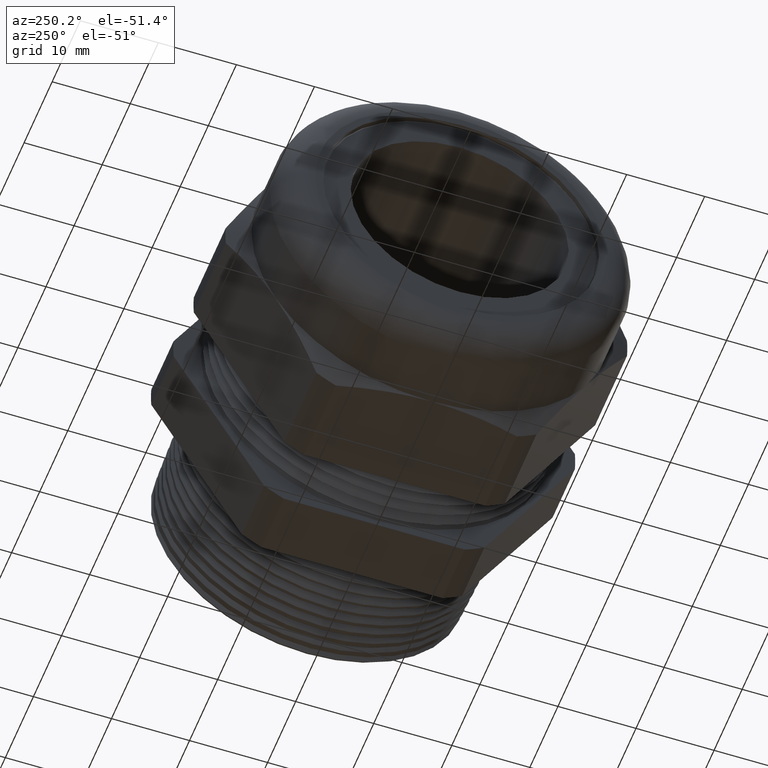
[diagram: clean part render]
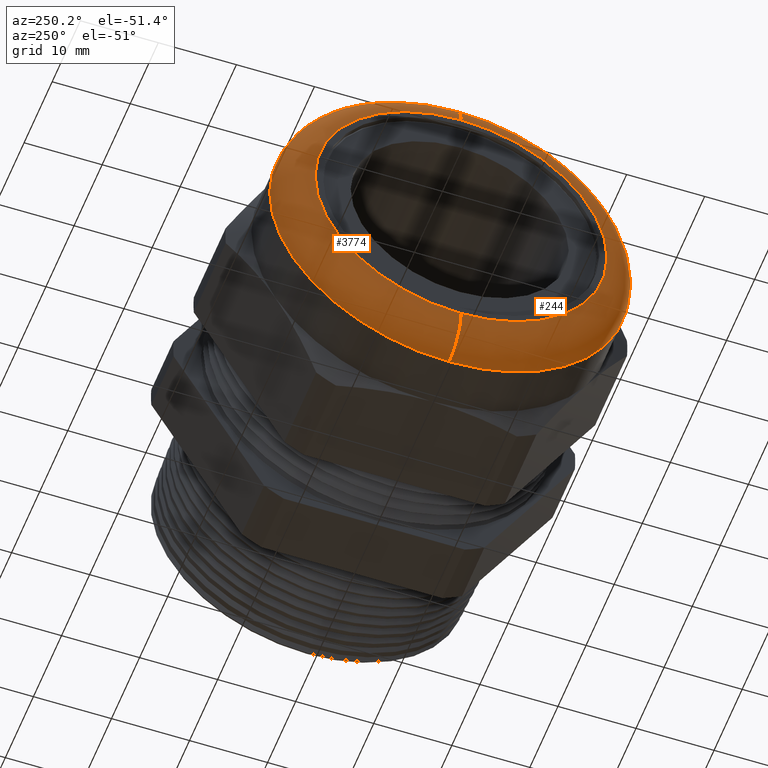
[diagram: same view with one multi-face feature highlighted, each face labeled with its STEP entity id]
A machine part, auxiliary view. The highlighted faces form ONE feature: a constant-radius fillet chain: 2 tangent blend faces with common blend radius 4.2824 mm. The faces share edges in the B-rep.
Their STEP definitions:
[1] entity #244 (Torus):
#190 = EDGE_CURVE ( 'NONE', #3820, #3768, #1124, .T. ) ;
#222 = EDGE_CURVE ( 'NONE', #557, #555, #1153, .T. ) ;
#244 = ADVANCED_FACE ( 'NONE', ( #1197 ), #1192, .T. ) ;
#245 = EDGE_LOOP ( 'NONE', ( #246, #247, #248, #249 ) ) ;
#246 = ORIENTED_EDGE ( 'NONE', *, *, #3823, .F. ) ;
#247 = ORIENTED_EDGE ( 'NONE', *, *, #190, .F. ) ;
#248 = ORIENTED_EDGE ( 'NONE', *, *, #549, .T. ) ;
#249 = ORIENTED_EDGE ( 'NONE', *, *, #222, .F. ) ;
#549 = EDGE_CURVE ( 'NONE', #3820, #555, #1736, .T. ) ;
#555 = VERTEX_POINT ( 'NONE', #1782 ) ;
#557 = VERTEX_POINT ( 'NONE', #1776 ) ;
#1120 = DIRECTION ( 'NONE',  ( 0.0000000000000000000, 0.0000000000000000000, -1.000000000000000000 ) ) ;
#1121 = DIRECTION ( 'NONE',  ( -1.000000000000000000, 0.0000000000000000000, 0.0000000000000000000 ) ) ;
#1122 = CARTESIAN_POINT ( 'NONE',  ( -1.530000000000000000, 0.0000000000000000000, 0.0000000000000000000 ) ) ;
#1123 = AXIS2_PLACEMENT_3D ( 'NONE', #1122, #1121, #1120 ) ;
#1124 = CIRCLE ( 'NONE', #1123, 0.7363999999999998300 ) ;
#1149 = DIRECTION ( 'NONE',  ( 0.0000000000000000000, 0.0000000000000000000, -1.000000000000000000 ) ) ;
#1150 = DIRECTION ( 'NONE',  ( 1.000000000000000000, 0.0000000000000000000, 0.0000000000000000000 ) ) ;
#1151 = CARTESIAN_POINT ( 'NONE',  ( -1.361399999999999900, 0.0000000000000000000, 0.0000000000000000000 ) ) ;
#1152 = AXIS2_PLACEMENT_3D ( 'NONE', #1151, #1150, #1149 ) ;
#1153 = CIRCLE ( 'NONE', #1152, 0.9049999999999999200 ) ;
#1188 = DIRECTION ( 'NONE',  ( 0.0000000000000000000, 0.0000000000000000000, -1.000000000000000000 ) ) ;
#1189 = DIRECTION ( 'NONE',  ( 1.000000000000000000, 0.0000000000000000000, 0.0000000000000000000 ) ) ;
#1190 = CARTESIAN_POINT ( 'NONE',  ( -1.361399999999999900, 0.0000000000000000000, 0.0000000000000000000 ) ) ;
#1191 = AXIS2_PLACEMENT_3D ( 'NONE', #1190, #1189, #1188 ) ;
#1192 = TOROIDAL_SURFACE ( 'NONE', #1191, 0.7363999999999998300, 0.1686000000000001100 ) ;
#1197 = FACE_OUTER_BOUND ( 'NONE', #245, .T. ) ;
#1732 = DIRECTION ( 'NONE',  ( 0.0000000000000000000, 0.0000000000000000000, -1.000000000000000000 ) ) ;
#1733 = DIRECTION ( 'NONE',  ( 0.0000000000000000000, -1.000000000000000000, 0.0000000000000000000 ) ) ;
#1734 = CARTESIAN_POINT ( 'NONE',  ( -1.361399999999999900, 0.0000000000000000000, -0.7363999999999998300 ) ) ;
#1735 = AXIS2_PLACEMENT_3D ( 'NONE', #1734, #1733, #1732 ) ;
#1736 = CIRCLE ( 'NONE', #1735, 0.1686000000000000800 ) ;
#1776 = CARTESIAN_POINT ( 'NONE',  ( -1.361399999999999900, 0.0000000000000000000, 0.9049999999999999200 ) ) ;
#1782 = CARTESIAN_POINT ( 'NONE',  ( -1.361399999999999900, 1.108305353228354500E-016, -0.9049999999999999200 ) ) ;
#2805 = CARTESIAN_POINT ( 'NONE',  ( -1.530000000000000000, 1.005067628060232600E-016, 0.7363999999999998300 ) ) ;
#2907 = DIRECTION ( 'NONE',  ( 0.0000000000000000000, 1.224646799147353900E-016, 1.000000000000000000 ) ) ;
#2908 = DIRECTION ( 'NONE',  ( 0.0000000000000000000, 1.000000000000000000, -1.224646799147353200E-016 ) ) ;
#2909 = CARTESIAN_POINT ( 'NONE',  ( -1.361399999999999900, 9.018299028921107300E-017, 0.7363999999999998300 ) ) ;
#2910 = AXIS2_PLACEMENT_3D ( 'NONE', #2909, #2908, #2907 ) ;
#2911 = CIRCLE ( 'NONE', #2910, 0.1686000000000000800 ) ;
#2912 = CARTESIAN_POINT ( 'NONE',  ( -1.530000000000000000, 0.0000000000000000000, -0.7363999999999998300 ) ) ;
#3768 = VERTEX_POINT ( 'NONE', #2805 ) ;
#3820 = VERTEX_POINT ( 'NONE', #2912 ) ;
#3823 = EDGE_CURVE ( 'NONE', #3768, #557, #2911, .T. ) ;
[2] entity #3774 (Torus):
#549 = EDGE_CURVE ( 'NONE', #3820, #555, #1736, .T. ) ;
#551 = ORIENTED_EDGE ( 'NONE', *, *, #549, .F. ) ;
#555 = VERTEX_POINT ( 'NONE', #1782 ) ;
#556 = EDGE_CURVE ( 'NONE', #555, #557, #1781, .T. ) ;
#557 = VERTEX_POINT ( 'NONE', #1776 ) ;
#558 = ORIENTED_EDGE ( 'NONE', *, *, #556, .F. ) ;
#1732 = DIRECTION ( 'NONE',  ( 0.0000000000000000000, 0.0000000000000000000, -1.000000000000000000 ) ) ;
#1733 = DIRECTION ( 'NONE',  ( 0.0000000000000000000, -1.000000000000000000, 0.0000000000000000000 ) ) ;
#1734 = CARTESIAN_POINT ( 'NONE',  ( -1.361399999999999900, 0.0000000000000000000, -0.7363999999999998300 ) ) ;
#1735 = AXIS2_PLACEMENT_3D ( 'NONE', #1734, #1733, #1732 ) ;
#1736 = CIRCLE ( 'NONE', #1735, 0.1686000000000000800 ) ;
#1776 = CARTESIAN_POINT ( 'NONE',  ( -1.361399999999999900, 0.0000000000000000000, 0.9049999999999999200 ) ) ;
#1777 = DIRECTION ( 'NONE',  ( 0.0000000000000000000, 0.0000000000000000000, -1.000000000000000000 ) ) ;
#1778 = DIRECTION ( 'NONE',  ( 1.000000000000000000, 0.0000000000000000000, 0.0000000000000000000 ) ) ;
#1779 = CARTESIAN_POINT ( 'NONE',  ( -1.361399999999999900, 0.0000000000000000000, 0.0000000000000000000 ) ) ;
#1780 = AXIS2_PLACEMENT_3D ( 'NONE', #1779, #1778, #1777 ) ;
#1781 = CIRCLE ( 'NONE', #1780, 0.9049999999999999200 ) ;
#1782 = CARTESIAN_POINT ( 'NONE',  ( -1.361399999999999900, 1.108305353228354500E-016, -0.9049999999999999200 ) ) ;
#2794 = DIRECTION ( 'NONE',  ( 0.0000000000000000000, 0.0000000000000000000, -1.000000000000000000 ) ) ;
#2795 = DIRECTION ( 'NONE',  ( 1.000000000000000000, 0.0000000000000000000, 0.0000000000000000000 ) ) ;
#2796 = CARTESIAN_POINT ( 'NONE',  ( -1.361399999999999900, 0.0000000000000000000, 0.0000000000000000000 ) ) ;
#2797 = AXIS2_PLACEMENT_3D ( 'NONE', #2796, #2795, #2794 ) ;
#2798 = TOROIDAL_SURFACE ( 'NONE', #2797, 0.7363999999999998300, 0.1686000000000001100 ) ;
#2799 = FACE_OUTER_BOUND ( 'NONE', #3772, .T. ) ;
#2800 = DIRECTION ( 'NONE',  ( 0.0000000000000000000, 0.0000000000000000000, -1.000000000000000000 ) ) ;
#2801 = DIRECTION ( 'NONE',  ( -1.000000000000000000, 0.0000000000000000000, 0.0000000000000000000 ) ) ;
#2802 = CARTESIAN_POINT ( 'NONE',  ( -1.530000000000000000, 0.0000000000000000000, 0.0000000000000000000 ) ) ;
#2803 = AXIS2_PLACEMENT_3D ( 'NONE', #2802, #2801, #2800 ) ;
#2804 = CIRCLE ( 'NONE', #2803, 0.7363999999999998300 ) ;
#2805 = CARTESIAN_POINT ( 'NONE',  ( -1.530000000000000000, 1.005067628060232600E-016, 0.7363999999999998300 ) ) ;
#2907 = DIRECTION ( 'NONE',  ( 0.0000000000000000000, 1.224646799147353900E-016, 1.000000000000000000 ) ) ;
#2908 = DIRECTION ( 'NONE',  ( 0.0000000000000000000, 1.000000000000000000, -1.224646799147353200E-016 ) ) ;
#2909 = CARTESIAN_POINT ( 'NONE',  ( -1.361399999999999900, 9.018299028921107300E-017, 0.7363999999999998300 ) ) ;
#2910 = AXIS2_PLACEMENT_3D ( 'NONE', #2909, #2908, #2907 ) ;
#2911 = CIRCLE ( 'NONE', #2910, 0.1686000000000000800 ) ;
#2912 = CARTESIAN_POINT ( 'NONE',  ( -1.530000000000000000, 0.0000000000000000000, -0.7363999999999998300 ) ) ;
#3768 = VERTEX_POINT ( 'NONE', #2805 ) ;
#3771 = ORIENTED_EDGE ( 'NONE', *, *, #3773, .F. ) ;
#3772 = EDGE_LOOP ( 'NONE', ( #3771, #3825, #558, #551 ) ) ;
#3773 = EDGE_CURVE ( 'NONE', #3768, #3820, #2804, .T. ) ;
#3774 = ADVANCED_FACE ( 'NONE', ( #2799 ), #2798, .T. ) ;
#3820 = VERTEX_POINT ( 'NONE', #2912 ) ;
#3823 = EDGE_CURVE ( 'NONE', #3768, #557, #2911, .T. ) ;
#3825 = ORIENTED_EDGE ( 'NONE', *, *, #3823, .T. ) ;